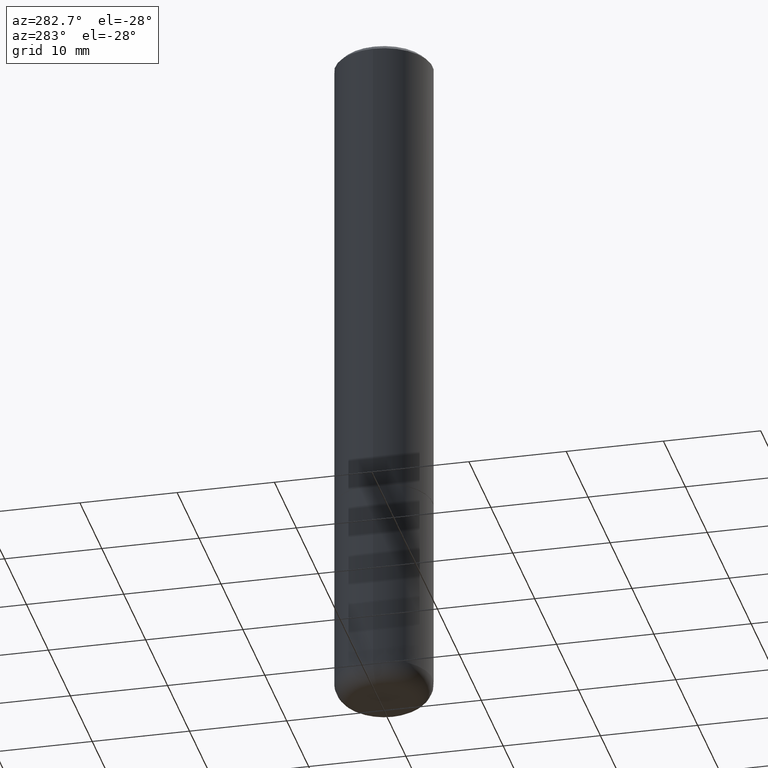
[diagram: clean part render]
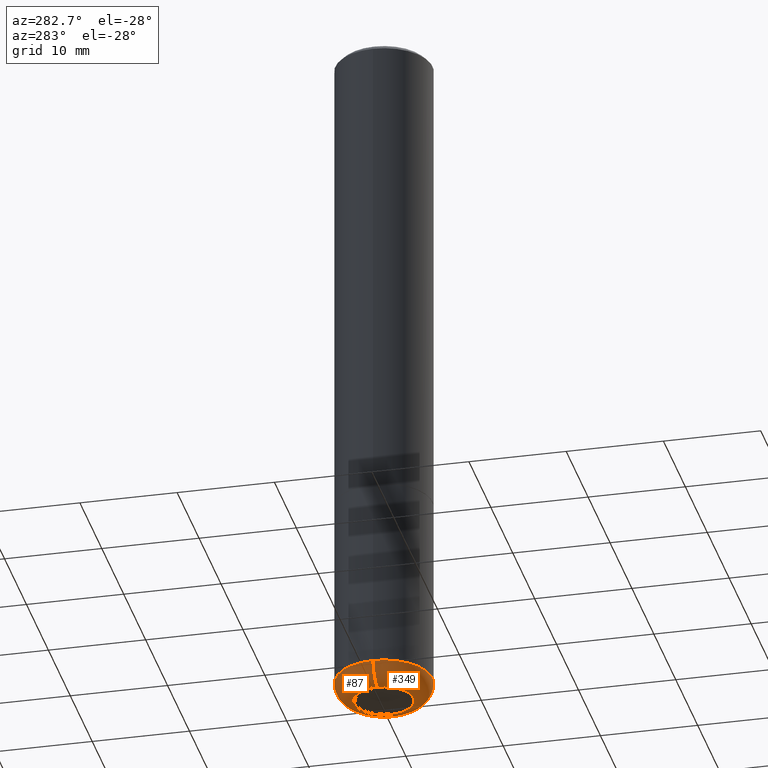
[diagram: same view with one multi-face feature highlighted, each face labeled with its STEP entity id]
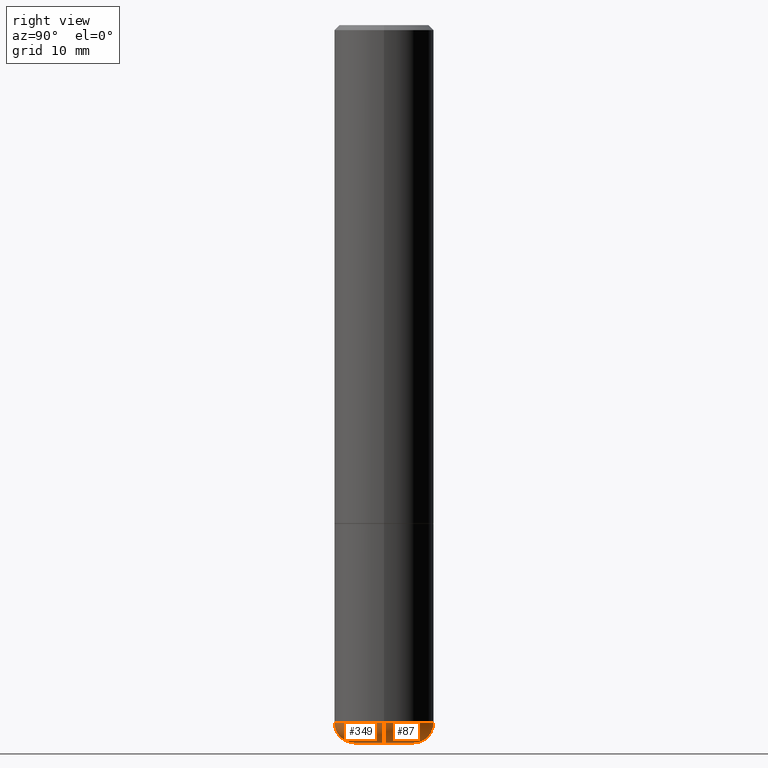
[diagram: same view with one multi-face feature highlighted, each face labeled with its STEP entity id]
A machine part, auxiliary view. The highlighted faces form ONE feature: a constant-radius fillet chain: 2 tangent blend faces with common blend radius 1.999 mm. The faces share edges in the B-rep.
A second angle (right view) of the same feature is appended — it is thin or edge-on in the first view.
Their STEP definitions:
[1] entity #87 (Torus):
#3 = CIRCLE ( 'NONE', #354, 0.07869999999999996443 ) ;
#6 = CARTESIAN_POINT ( 'NONE',  ( -0.1181500000000000050, -8.782667179417266182E-15, -2.755900000000000016 ) ) ;
#17 = DIRECTION ( 'NONE',  ( -6.982962677686266711E-15, -1.000000000000000000, 3.491481338843145583E-15 ) ) ;
#30 = EDGE_CURVE ( 'NONE', #215, #101, #392, .T. ) ;
#47 = VERTEX_POINT ( 'NONE', #390 ) ;
#54 = AXIS2_PLACEMENT_3D ( 'NONE', #6, #139, #292 ) ;
#55 = ORIENTED_EDGE ( 'NONE', *, *, #261, .F. ) ;
#75 = FACE_OUTER_BOUND ( 'NONE', #402, .T. ) ;
#87 = ADVANCED_FACE ( 'NONE', ( #75 ), #273, .T. ) ;
#101 = VERTEX_POINT ( 'NONE', #262 ) ;
#106 = CARTESIAN_POINT ( 'NONE',  ( 6.739467482965618232E-29, -9.622173421717824390E-15, -2.755900000000000016 ) ) ;
#113 = DIRECTION ( 'NONE',  ( 1.000000000000000000, -6.982962677686265922E-15, 0.000000000000000000 ) ) ;
#139 = DIRECTION ( 'NONE',  ( 7.105427357601001859E-15, 1.000000000000000000, -3.491481338843145583E-15 ) ) ;
#144 = EDGE_CURVE ( 'NONE', #47, #101, #340, .T. ) ;
#172 = AXIS2_PLACEMENT_3D ( 'NONE', #228, #388, #230 ) ;
#212 = AXIS2_PLACEMENT_3D ( 'NONE', #106, #360, #358 ) ;
#215 = VERTEX_POINT ( 'NONE', #310 ) ;
#223 = ORIENTED_EDGE ( 'NONE', *, *, #144, .T. ) ;
#228 = CARTESIAN_POINT ( 'NONE',  ( 6.739467482965618232E-29, -9.622173421717824390E-15, -2.755900000000000016 ) ) ;
#230 = DIRECTION ( 'NONE',  ( 1.000000000000000000, -6.982962677686267499E-15, 0.000000000000000000 ) ) ;
#236 = DIRECTION ( 'NONE',  ( 1.000000000000000000, -6.982962677686273021E-15, 0.000000000000000000 ) ) ;
#239 = CARTESIAN_POINT ( 'NONE',  ( 6.931925878012387517E-29, -9.896953003084780885E-15, -2.834600000000000009 ) ) ;
#243 = CARTESIAN_POINT ( 'NONE',  ( 0.1181500000000000189, -1.072199004345341266E-14, -2.834600000000000009 ) ) ;
#252 = ORIENTED_EDGE ( 'NONE', *, *, #338, .T. ) ;
#261 = EDGE_CURVE ( 'NONE', #394, #215, #3, .T. ) ;
#262 = CARTESIAN_POINT ( 'NONE',  ( -0.1968499999999999694, -8.223470046374067391E-15, -2.755900000000000016 ) ) ;
#268 = CIRCLE ( 'NONE', #337, 0.1181500000000000189 ) ;
#273 = TOROIDAL_SURFACE ( 'NONE', #212, 0.1181500000000000050, 0.07869999999999995055 ) ;
#289 = ORIENTED_EDGE ( 'NONE', *, *, #30, .F. ) ;
#292 = DIRECTION ( 'NONE',  ( -1.000000000000000000, 7.105427357600995548E-15, 0.000000000000000000 ) ) ;
#304 = DIRECTION ( 'NONE',  ( -2.445468806185136597E-29, 3.491481338843145583E-15, 1.000000000000000000 ) ) ;
#310 = CARTESIAN_POINT ( 'NONE',  ( 0.1968499999999999694, -1.099676962482036600E-14, -2.755900000000000016 ) ) ;
#337 = AXIS2_PLACEMENT_3D ( 'NONE', #239, #304, #113 ) ;
#338 = EDGE_CURVE ( 'NONE', #394, #47, #268, .T. ) ;
#340 = CIRCLE ( 'NONE', #54, 0.07869999999999996443 ) ;
#354 = AXIS2_PLACEMENT_3D ( 'NONE', #401, #17, #236 ) ;
#358 = DIRECTION ( 'NONE',  ( 1.000000000000000000, -6.982962677686269077E-15, 4.883557194083114022E-29 ) ) ;
#360 = DIRECTION ( 'NONE',  ( -2.445468806185136597E-29, 3.491481338843145583E-15, 1.000000000000000000 ) ) ;
#388 = DIRECTION ( 'NONE',  ( -2.445468806185136597E-29, 3.491481338843145583E-15, 1.000000000000000000 ) ) ;
#390 = CARTESIAN_POINT ( 'NONE',  ( -0.1181500000000000189, -8.640458403579145034E-15, -2.834600000000000009 ) ) ;
#392 = CIRCLE ( 'NONE', #172, 0.1968500000000000250 ) ;
#394 = VERTEX_POINT ( 'NONE', #243 ) ;
#401 = CARTESIAN_POINT ( 'NONE',  ( 0.1181500000000000050, -1.044721046208645774E-14, -2.755900000000000016 ) ) ;
#402 = EDGE_LOOP ( 'NONE', ( #252, #223, #289, #55 ) ) ;
[2] entity #349 (Torus):
#3 = CIRCLE ( 'NONE', #354, 0.07869999999999996443 ) ;
#6 = CARTESIAN_POINT ( 'NONE',  ( -0.1181500000000000050, -8.782667179417266182E-15, -2.755900000000000016 ) ) ;
#8 = CIRCLE ( 'NONE', #19, 0.1181500000000000189 ) ;
#15 = ORIENTED_EDGE ( 'NONE', *, *, #261, .T. ) ;
#17 = DIRECTION ( 'NONE',  ( -6.982962677686266711E-15, -1.000000000000000000, 3.491481338843145583E-15 ) ) ;
#19 = AXIS2_PLACEMENT_3D ( 'NONE', #300, #138, #68 ) ;
#33 = CIRCLE ( 'NONE', #91, 0.1968500000000000250 ) ;
#46 = CARTESIAN_POINT ( 'NONE',  ( 6.739467482965618232E-29, -9.622173421717824390E-15, -2.755900000000000016 ) ) ;
#47 = VERTEX_POINT ( 'NONE', #390 ) ;
#54 = AXIS2_PLACEMENT_3D ( 'NONE', #6, #139, #292 ) ;
#68 = DIRECTION ( 'NONE',  ( 1.000000000000000000, -6.982962677686265922E-15, 0.000000000000000000 ) ) ;
#72 = EDGE_CURVE ( 'NONE', #47, #394, #8, .T. ) ;
#77 = TOROIDAL_SURFACE ( 'NONE', #84, 0.1181500000000000050, 0.07869999999999995055 ) ;
#84 = AXIS2_PLACEMENT_3D ( 'NONE', #46, #115, #365 ) ;
#91 = AXIS2_PLACEMENT_3D ( 'NONE', #275, #168, #143 ) ;
#101 = VERTEX_POINT ( 'NONE', #262 ) ;
#115 = DIRECTION ( 'NONE',  ( -2.445468806185136597E-29, 3.491481338843145583E-15, 1.000000000000000000 ) ) ;
#129 = ORIENTED_EDGE ( 'NONE', *, *, #321, .F. ) ;
#132 = EDGE_LOOP ( 'NONE', ( #397, #344, #15, #129 ) ) ;
#138 = DIRECTION ( 'NONE',  ( -2.445468806185136597E-29, 3.491481338843145583E-15, 1.000000000000000000 ) ) ;
#139 = DIRECTION ( 'NONE',  ( 7.105427357601001859E-15, 1.000000000000000000, -3.491481338843145583E-15 ) ) ;
#143 = DIRECTION ( 'NONE',  ( 1.000000000000000000, -6.982962677686267499E-15, 0.000000000000000000 ) ) ;
#144 = EDGE_CURVE ( 'NONE', #47, #101, #340, .T. ) ;
#168 = DIRECTION ( 'NONE',  ( -2.445468806185136597E-29, 3.491481338843145583E-15, 1.000000000000000000 ) ) ;
#215 = VERTEX_POINT ( 'NONE', #310 ) ;
#236 = DIRECTION ( 'NONE',  ( 1.000000000000000000, -6.982962677686273021E-15, 0.000000000000000000 ) ) ;
#243 = CARTESIAN_POINT ( 'NONE',  ( 0.1181500000000000189, -1.072199004345341266E-14, -2.834600000000000009 ) ) ;
#261 = EDGE_CURVE ( 'NONE', #394, #215, #3, .T. ) ;
#262 = CARTESIAN_POINT ( 'NONE',  ( -0.1968499999999999694, -8.223470046374067391E-15, -2.755900000000000016 ) ) ;
#275 = CARTESIAN_POINT ( 'NONE',  ( 6.739467482965618232E-29, -9.622173421717824390E-15, -2.755900000000000016 ) ) ;
#292 = DIRECTION ( 'NONE',  ( -1.000000000000000000, 7.105427357600995548E-15, 0.000000000000000000 ) ) ;
#300 = CARTESIAN_POINT ( 'NONE',  ( 6.931925878012387517E-29, -9.896953003084780885E-15, -2.834600000000000009 ) ) ;
#310 = CARTESIAN_POINT ( 'NONE',  ( 0.1968499999999999694, -1.099676962482036600E-14, -2.755900000000000016 ) ) ;
#321 = EDGE_CURVE ( 'NONE', #101, #215, #33, .T. ) ;
#332 = FACE_OUTER_BOUND ( 'NONE', #132, .T. ) ;
#340 = CIRCLE ( 'NONE', #54, 0.07869999999999996443 ) ;
#344 = ORIENTED_EDGE ( 'NONE', *, *, #72, .T. ) ;
#349 = ADVANCED_FACE ( 'NONE', ( #332 ), #77, .T. ) ;
#354 = AXIS2_PLACEMENT_3D ( 'NONE', #401, #17, #236 ) ;
#365 = DIRECTION ( 'NONE',  ( 1.000000000000000000, -6.982962677686269077E-15, 4.883557194083114022E-29 ) ) ;
#390 = CARTESIAN_POINT ( 'NONE',  ( -0.1181500000000000189, -8.640458403579145034E-15, -2.834600000000000009 ) ) ;
#394 = VERTEX_POINT ( 'NONE', #243 ) ;
#397 = ORIENTED_EDGE ( 'NONE', *, *, #144, .F. ) ;
#401 = CARTESIAN_POINT ( 'NONE',  ( 0.1181500000000000050, -1.044721046208645774E-14, -2.755900000000000016 ) ) ;